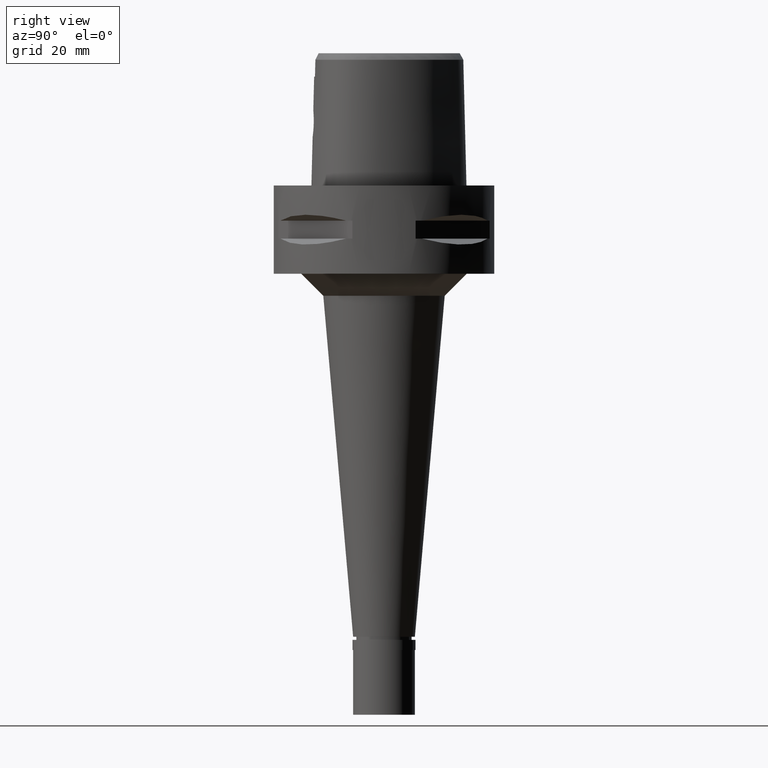
[diagram: clean part render]
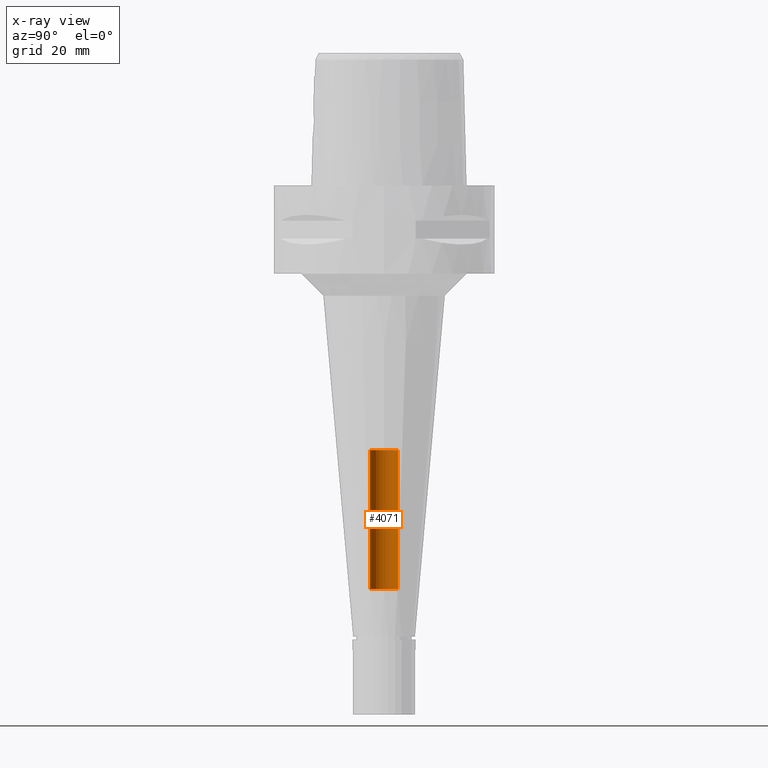
[diagram: x-ray — body ghosted, one internal face saturated and labeled with its STEP entity id]
A machine part, right view, then the same camera in x-ray: the body is ghosted and one INTERNAL B-rep face — a face not visible from any outside direction — is saturated and labeled: STEP entity #4071.
In plain terms, the highlighted cylindrical surface (edge-blend (fillet) strip) has radius 3.2 mm, axis along (0, 0, -1).
Its self-contained STEP definition (entity closure, byte-faithful):
#234 = CIRCLE ( 'NONE', #1719, 3.200000000000000178 ) ;
#314 = VERTEX_POINT ( 'NONE', #3021 ) ;
#623 = DIRECTION ( 'NONE',  ( 0.0000000000000000000, 0.0000000000000000000, -1.000000000000000000 ) ) ;
#816 = CARTESIAN_POINT ( 'NONE',  ( 0.0000000000000000000, -3.200000000000000178, -91.50000000000000000 ) ) ;
#879 = EDGE_CURVE ( 'NONE', #2826, #4214, #3506, .T. ) ;
#938 = CARTESIAN_POINT ( 'NONE',  ( 0.0000000000000000000, 3.200000000000000178, -91.50000000000000000 ) ) ;
#992 = DIRECTION ( 'NONE',  ( 0.0000000000000000000, 0.0000000000000000000, 1.000000000000000000 ) ) ;
#1064 = ORIENTED_EDGE ( 'NONE', *, *, #879, .T. ) ;
#1082 = ORIENTED_EDGE ( 'NONE', *, *, #2013, .F. ) ;
#1157 = EDGE_CURVE ( 'NONE', #4214, #314, #234, .T. ) ;
#1221 = DIRECTION ( 'NONE',  ( 0.0000000000000000000, 0.0000000000000000000, 1.000000000000000000 ) ) ;
#1355 = DIRECTION ( 'NONE',  ( 0.0000000000000000000, 1.000000000000000000, 0.0000000000000000000 ) ) ;
#1377 = CARTESIAN_POINT ( 'NONE',  ( 0.0000000000000000000, 1.295676313497999978E-14, -60.00000000000000000 ) ) ;
#1387 = CARTESIAN_POINT ( 'NONE',  ( 0.0000000000000000000, 1.295676313497999978E-14, 5.799999999999999822 ) ) ;
#1719 = AXIS2_PLACEMENT_3D ( 'NONE', #1377, #992, #1355 ) ;
#1727 = AXIS2_PLACEMENT_3D ( 'NONE', #3244, #3953, #3522 ) ;
#1947 = CARTESIAN_POINT ( 'NONE',  ( 0.0000000000000000000, -3.200000000000000178, -91.50000000000000000 ) ) ;
#2013 = EDGE_CURVE ( 'NONE', #2998, #314, #4491, .T. ) ;
#2167 = CARTESIAN_POINT ( 'NONE',  ( 0.0000000000000000000, 3.200000000000000178, -60.00000000000000000 ) ) ;
#2249 = ORIENTED_EDGE ( 'NONE', *, *, #1157, .T. ) ;
#2328 = VECTOR ( 'NONE', #2429, 1000.000000000000000 ) ;
#2429 = DIRECTION ( 'NONE',  ( 0.0000000000000000000, 0.0000000000000000000, 1.000000000000000000 ) ) ;
#2568 = EDGE_CURVE ( 'NONE', #2998, #2826, #4641, .T. ) ;
#2792 = FACE_OUTER_BOUND ( 'NONE', #2898, .T. ) ;
#2826 = VERTEX_POINT ( 'NONE', #4005 ) ;
#2898 = EDGE_LOOP ( 'NONE', ( #2249, #1082, #2947, #1064 ) ) ;
#2947 = ORIENTED_EDGE ( 'NONE', *, *, #2568, .T. ) ;
#2998 = VERTEX_POINT ( 'NONE', #816 ) ;
#3021 = CARTESIAN_POINT ( 'NONE',  ( 0.0000000000000000000, -3.200000000000000178, -60.00000000000000000 ) ) ;
#3244 = CARTESIAN_POINT ( 'NONE',  ( 0.0000000000000000000, 1.295676313497999978E-14, -91.50000000000000000 ) ) ;
#3506 = LINE ( 'NONE', #938, #2328 ) ;
#3522 = DIRECTION ( 'NONE',  ( 0.0000000000000000000, -1.000000000000000000, 0.0000000000000000000 ) ) ;
#3922 = CYLINDRICAL_SURFACE ( 'NONE', #4383, 3.200000000000000178 ) ;
#3944 = DIRECTION ( 'NONE',  ( 0.0000000000000000000, -1.000000000000000000, 0.0000000000000000000 ) ) ;
#3953 = DIRECTION ( 'NONE',  ( 0.0000000000000000000, 0.0000000000000000000, -1.000000000000000000 ) ) ;
#4005 = CARTESIAN_POINT ( 'NONE',  ( 0.0000000000000000000, 3.200000000000000178, -91.50000000000000000 ) ) ;
#4071 = ADVANCED_FACE ( 'NONE', ( #2792 ), #3922, .F. ) ;
#4098 = VECTOR ( 'NONE', #1221, 1000.000000000000000 ) ;
#4214 = VERTEX_POINT ( 'NONE', #2167 ) ;
#4383 = AXIS2_PLACEMENT_3D ( 'NONE', #1387, #623, #3944 ) ;
#4491 = LINE ( 'NONE', #1947, #4098 ) ;
#4641 = CIRCLE ( 'NONE', #1727, 3.200000000000000178 ) ;